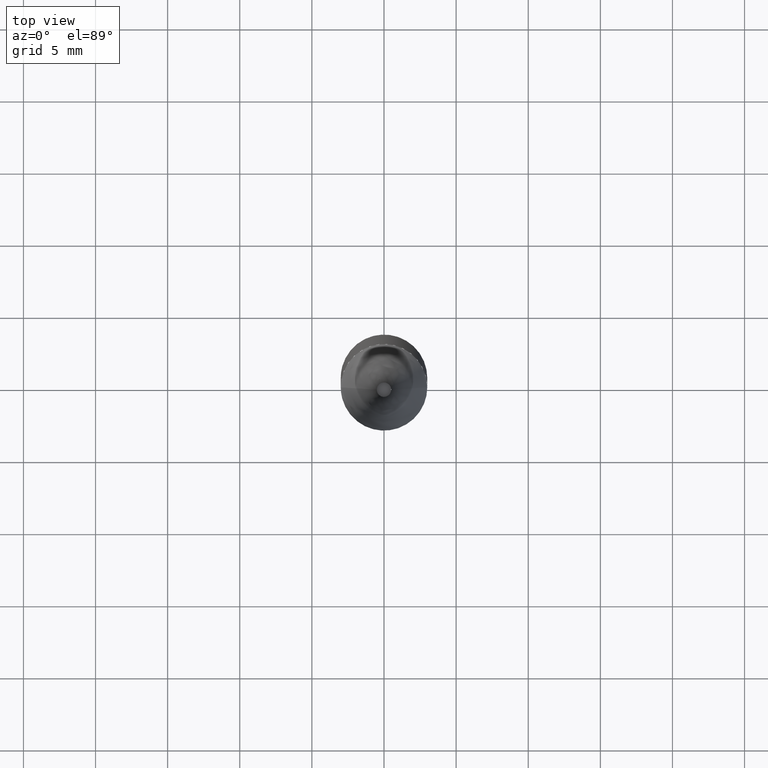
[diagram: clean part render]
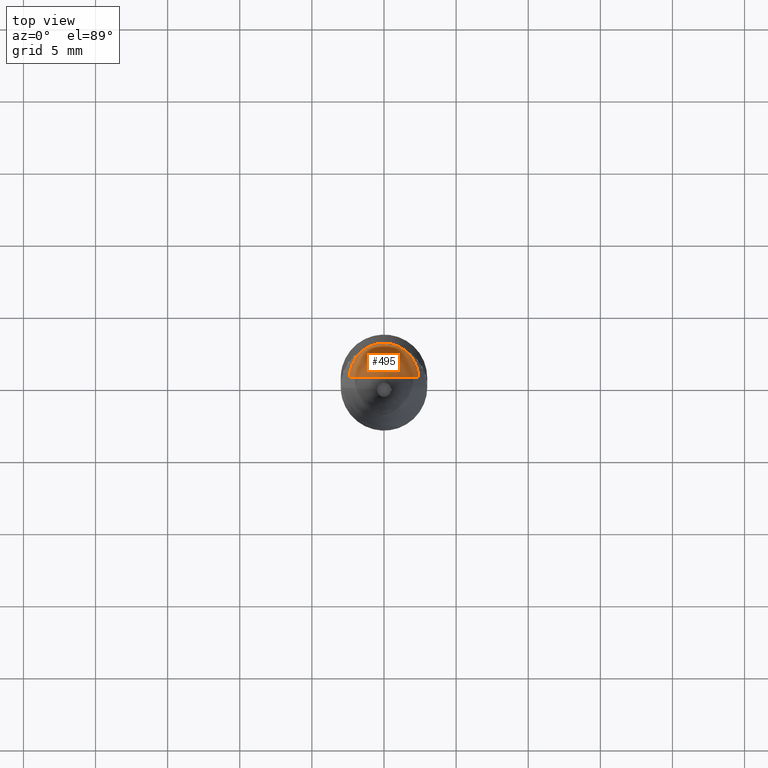
[diagram: same view with one face highlighted and labeled with its STEP entity id]
A machine part, top view. The second image highlights one B-rep face of the part: STEP entity #495.
In plain terms, the highlighted face is a freeform B-spline surface patch.
Its self-contained STEP definition (entity closure, byte-faithful):
#253=CARTESIAN_POINT('',(2.4,0.0,38.169));
#254=CARTESIAN_POINT('',(2.4,2.4,38.169));
#255=CARTESIAN_POINT('',(0.0,2.4,38.169));
#256=CARTESIAN_POINT('',(-2.4,2.4,38.169));
#257=CARTESIAN_POINT('',(-2.4,0.0,38.169));
#258=CARTESIAN_POINT('',(0.0,0.0,38.169));
#480=(
BOUNDED_SURFACE()
B_SPLINE_SURFACE(1,2,(
(#253,#254,#255,#256,#257),
(#258,#258,#258,#258,#258)
), .UNSPECIFIED.,.F.,.F.,.F.)
B_SPLINE_SURFACE_WITH_KNOTS((2,2),(3,2,3),(
0.0,1.0),(
0.0,0.5,1.0), .UNSPECIFIED.)
GEOMETRIC_REPRESENTATION_ITEM()
RATIONAL_B_SPLINE_SURFACE(((1.0,0.707106781187,1.0,0.707106781187,1.0),
(1.0,0.707106781187,1.0,0.707106781187,1.0)
))
REPRESENTATION_ITEM('')
SURFACE()
);
#481=(
BOUNDED_CURVE()
B_SPLINE_CURVE(1,(#258,#253),.UNSPECIFIED.,.F.,.F.)
B_SPLINE_CURVE_WITH_KNOTS((2,2),
(0.0,1.0),.UNSPECIFIED.)
CURVE()
GEOMETRIC_REPRESENTATION_ITEM()
RATIONAL_B_SPLINE_CURVE((1.0,1.0))
REPRESENTATION_ITEM('')
);
#482=(
BOUNDED_CURVE()
B_SPLINE_CURVE(2,(#253,#254,#255,#256,#257),.UNSPECIFIED.,.F.,.F.)
B_SPLINE_CURVE_WITH_KNOTS((3,2,3),
(0.0,0.5,1.0),.UNSPECIFIED.)
CURVE()
GEOMETRIC_REPRESENTATION_ITEM()
RATIONAL_B_SPLINE_CURVE((1.0,0.707106781187,1.0,0.707106781187,1.0))
REPRESENTATION_ITEM('')
);
#483=(
BOUNDED_CURVE()
B_SPLINE_CURVE(1,(#257,#258),.UNSPECIFIED.,.F.,.F.)
B_SPLINE_CURVE_WITH_KNOTS((2,2),
(0.0,1.0),.UNSPECIFIED.)
CURVE()
GEOMETRIC_REPRESENTATION_ITEM()
RATIONAL_B_SPLINE_CURVE((1.0,1.0))
REPRESENTATION_ITEM('')
);
#484=VERTEX_POINT('',#253);
#485=VERTEX_POINT('',#257);
#486=VERTEX_POINT('',#258);
#487=EDGE_CURVE('',#486,#484,#481,.T.);
#488=EDGE_CURVE('',#484,#485,#482,.T.);
#489=EDGE_CURVE('',#485,#486,#483,.T.);
#490=ORIENTED_EDGE('',*,*,#487,.T.);
#491=ORIENTED_EDGE('',*,*,#488,.T.);
#492=ORIENTED_EDGE('',*,*,#489,.T.);
#493=EDGE_LOOP('',(#490,#491,#492));
#494=FACE_OUTER_BOUND('',#493,.T.);
#495=ADVANCED_FACE('',(#494),#480,.T.);